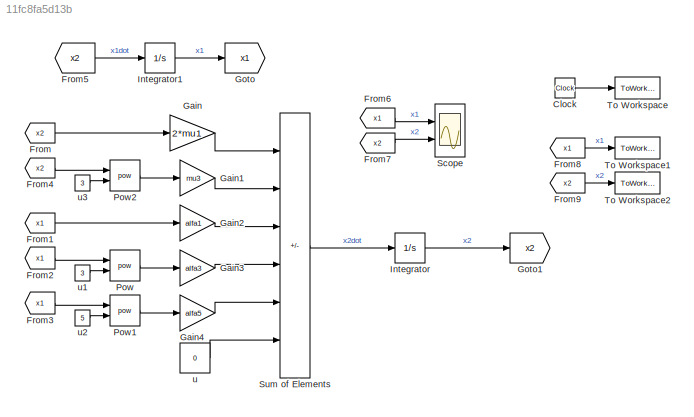
MODEL slx_11fc8fa5d13b
KIND model
CONFIG AbsTol = auto
CONFIG EnableMultiTasking = off
CONFIG FixedStep = auto
CONFIG MaxStep = 1e-3
CONFIG MinStep = auto
CONFIG RelTol = 1e-3
CONFIG SampleTimeConstraint = Unconstrained
CONFIG SolverName = VariableStepAuto
CONFIG StartTime = 0.0
CONFIG StopTime = 50
BLOCK [Clock] Clock
BLOCK [From] From
  GotoTag = x2
BLOCK [From] From1
  GotoTag = x1
BLOCK [From] From2
  GotoTag = x1
BLOCK [From] From3
  GotoTag = x1
BLOCK [From] From4
  GotoTag = x2
BLOCK [From] From5
  GotoTag = x2
BLOCK [From] From6
  GotoTag = x1
BLOCK [From] From7
  GotoTag = x2
BLOCK [From] From8
  GotoTag = x1
BLOCK [From] From9
  GotoTag = x2
BLOCK [Gain] Gain
  Gain = 2*mu1
BLOCK [Gain] Gain1
  Gain = mu3
BLOCK [Gain] Gain2
  Gain = alfa1
BLOCK [Gain] Gain3
  Gain = alfa3
BLOCK [Gain] Gain4
  Gain = alfa5
BLOCK [Goto] Goto
  GotoTag = x1
BLOCK [Goto] Goto1
  GotoTag = x2
BLOCK [Integrator] Integrator
  InitialCondition = 0.5
  Ports = [1, 1]
BLOCK [Integrator] Integrator1
  InitialCondition = 0.5
  Ports = [1, 1]
BLOCK [Math] Pow
  Operator = pow
  Ports = [2, 1]
  RndMeth = Zero
BLOCK [Math] Pow1
  Operator = pow
  Ports = [2, 1]
  RndMeth = Zero
BLOCK [Math] Pow2
  Operator = pow
  Ports = [2, 1]
  RndMeth = Zero
BLOCK [Scope] Scope
  Floating = off
  NumInputPorts = 2
  Ports = [2]
  ScopeSpecificationString = Simulink.scopes.TimeScopeBlockCfg('CurrentConfiguration', extmgr.ConfigurationSet(extmgr.Configuration('Core','General UI',true,'FigureColor',[1 1 1]),extmgr.Configuration('Core','Source UI',true),extmgr.Configuration('Sources','WiredSimulink',true),extmgr.Configuration('Visuals','Time Domain',true,'SerializedDisplays',{struct('MinYLimReal','-0.5293','MaxYLimReal','0.62922','YLabelReal','','MinYLi...<+2213ch>
BLOCK [Sum] Sum of Elements
  IconShape = rectangular
  Inputs = -----+
  Ports = [6, 1]
BLOCK [ToWorkspace] To Workspace
  FixptAsFi = on
  MaxDataPoints = inf
  Ports = [1]
  SampleTime = -1
  Save2DSignal = 2-D array (concatenate along first dimension)
  VariableName = t
BLOCK [ToWorkspace] To Workspace1
  FixptAsFi = on
  MaxDataPoints = inf
  Ports = [1]
  SampleTime = -1
  Save2DSignal = 2-D array (concatenate along first dimension)
  VariableName = x1
BLOCK [ToWorkspace] To Workspace2
  FixptAsFi = on
  MaxDataPoints = inf
  Ports = [1]
  SampleTime = -1
  Save2DSignal = 2-D array (concatenate along first dimension)
  VariableName = x2
BLOCK [Constant] u
  Value = 0
BLOCK [Constant] u1
  Value = 3
BLOCK [Constant] u2
  Value = 5
BLOCK [Constant] u3
  Value = 3
LINE Clock:1 -> To Workspace:1
LINE From1:1 -> Gain2:1
LINE From2:1 -> Pow:1
LINE From3:1 -> Pow1:1
LINE From4:1 -> Pow2:1
LINE From5:1 -> Integrator1:1
LINE From6:1 -> Scope:1
LINE From7:1 -> Scope:2
LINE From8:1 -> To Workspace1:1
LINE From9:1 -> To Workspace2:1
LINE From:1 -> Gain:1
LINE Gain1:1 -> Sum of Elements:2
LINE Gain2:1 -> Sum of Elements:3
LINE Gain3:1 -> Sum of Elements:4
LINE Gain4:1 -> Sum of Elements:5
LINE Gain:1 -> Sum of Elements:1
LINE Integrator1:1 -> Goto:1
LINE Integrator:1 -> Goto1:1
LINE Pow1:1 -> Gain4:1
LINE Pow2:1 -> Gain1:1
LINE Pow:1 -> Gain3:1
LINE Sum of Elements:1 -> Integrator:1
LINE u1:1 -> Pow:2
LINE u2:1 -> Pow1:2
LINE u3:1 -> Pow2:2
LINE u:1 -> Sum of Elements:6
